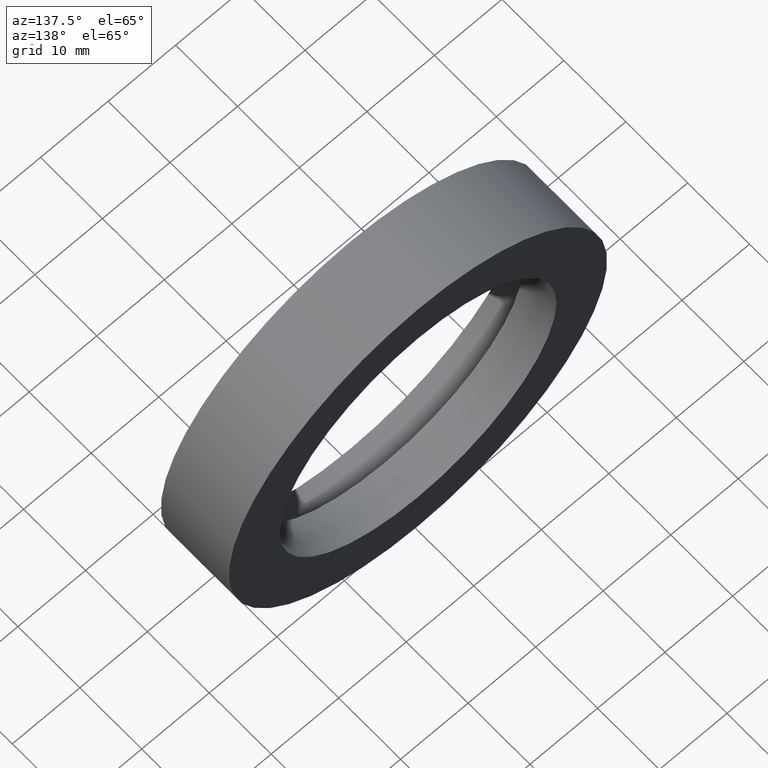
[diagram: clean part render]
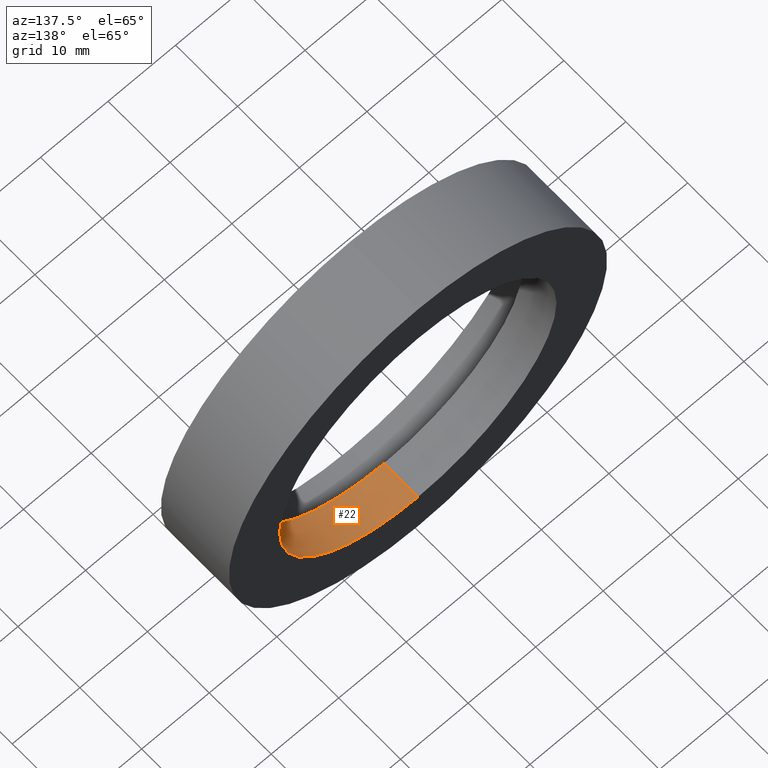
[diagram: same view with one face highlighted and labeled with its STEP entity id]
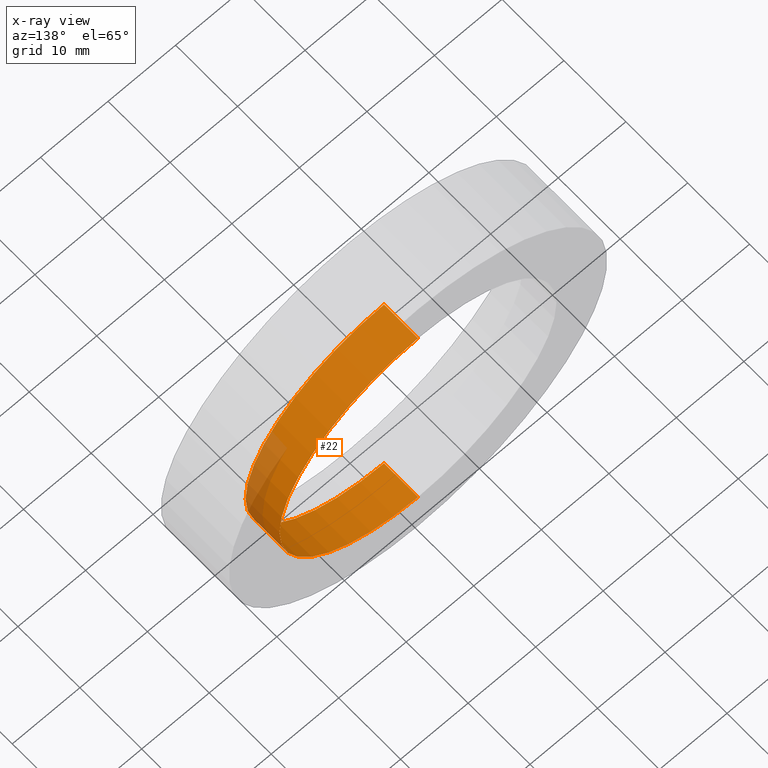
[diagram: x-ray of the same camera — body ghosted, the highlighted face saturated]
A machine part, auxiliary view. The second image highlights one B-rep face of the part: STEP entity #22.
The next image is the same camera in x-ray: the body ghosted, the highlighted face saturated — about 10% of this face is hidden behind the body in this view.
In plain terms, the highlighted cylindrical surface (partial cylindrical patch) has radius 20.5 mm, axis along (-0, 1, -0).
Its self-contained STEP definition (entity closure, byte-faithful):
#16 = ORIENTED_EDGE ( 'NONE', *, *, #142, .T. ) ;
#21 = AXIS2_PLACEMENT_3D ( 'NONE', #384, #192, #412 ) ;
#22 = ADVANCED_FACE ( 'NONE', ( #322 ), #282, .F. ) ;
#82 = VECTOR ( 'NONE', #273, 1000.000000000000000 ) ;
#83 = VERTEX_POINT ( 'NONE', #196 ) ;
#88 = LINE ( 'NONE', #355, #356 ) ;
#90 = EDGE_CURVE ( 'NONE', #344, #217, #88, .T. ) ;
#109 = CARTESIAN_POINT ( 'NONE',  ( 2.510525938252074900E-015, 60.02082041425541100, -20.50000000000000700 ) ) ;
#114 = DIRECTION ( 'NONE',  ( -0.0000000000000000000, 1.000000000000000000, -0.0000000000000000000 ) ) ;
#116 = DIRECTION ( 'NONE',  ( -0.0000000000000000000, 1.000000000000000000, -0.0000000000000000000 ) ) ;
#136 = LINE ( 'NONE', #109, #82 ) ;
#142 = EDGE_CURVE ( 'NONE', #217, #83, #366, .T. ) ;
#146 = EDGE_CURVE ( 'NONE', #344, #220, #197, .T. ) ;
#182 = ORIENTED_EDGE ( 'NONE', *, *, #90, .T. ) ;
#192 = DIRECTION ( 'NONE',  ( -0.0000000000000000000, 1.000000000000000000, -0.0000000000000000000 ) ) ;
#193 = ORIENTED_EDGE ( 'NONE', *, *, #323, .F. ) ;
#196 = CARTESIAN_POINT ( 'NONE',  ( 2.510525938252074900E-015, 10.99999999999999600, -20.50000000000000700 ) ) ;
#197 = CIRCLE ( 'NONE', #21, 20.50000000000000700 ) ;
#198 = EDGE_LOOP ( 'NONE', ( #193, #361, #182, #16 ) ) ;
#202 = DIRECTION ( 'NONE',  ( 0.0000000000000000000, 0.0000000000000000000, 1.000000000000000000 ) ) ;
#213 = CARTESIAN_POINT ( 'NONE',  ( 0.0000000000000000000, 5.499999999999998200, 20.50000000000000700 ) ) ;
#217 = VERTEX_POINT ( 'NONE', #349 ) ;
#220 = VERTEX_POINT ( 'NONE', #350 ) ;
#273 = DIRECTION ( 'NONE',  ( -0.0000000000000000000, 1.000000000000000000, -0.0000000000000000000 ) ) ;
#282 = CYLINDRICAL_SURFACE ( 'NONE', #389, 20.50000000000000700 ) ;
#296 = CARTESIAN_POINT ( 'NONE',  ( 0.0000000000000000000, 60.02082041425541100, 0.0000000000000000000 ) ) ;
#320 = CARTESIAN_POINT ( 'NONE',  ( 0.0000000000000000000, 10.99999999999999600, 0.0000000000000000000 ) ) ;
#322 = FACE_OUTER_BOUND ( 'NONE', #198, .T. ) ;
#323 = EDGE_CURVE ( 'NONE', #220, #83, #136, .T. ) ;
#344 = VERTEX_POINT ( 'NONE', #213 ) ;
#349 = CARTESIAN_POINT ( 'NONE',  ( 0.0000000000000000000, 10.99999999999999600, 20.50000000000000700 ) ) ;
#350 = CARTESIAN_POINT ( 'NONE',  ( 2.510525938252074900E-015, 5.499999999999998200, -20.50000000000000700 ) ) ;
#353 = DIRECTION ( 'NONE',  ( 0.0000000000000000000, 0.0000000000000000000, 1.000000000000000000 ) ) ;
#355 = CARTESIAN_POINT ( 'NONE',  ( 0.0000000000000000000, 60.02082041425541100, 20.50000000000000700 ) ) ;
#356 = VECTOR ( 'NONE', #116, 1000.000000000000000 ) ;
#359 = DIRECTION ( 'NONE',  ( -0.0000000000000000000, 1.000000000000000000, -0.0000000000000000000 ) ) ;
#361 = ORIENTED_EDGE ( 'NONE', *, *, #146, .F. ) ;
#366 = CIRCLE ( 'NONE', #370, 20.50000000000000700 ) ;
#370 = AXIS2_PLACEMENT_3D ( 'NONE', #320, #114, #353 ) ;
#384 = CARTESIAN_POINT ( 'NONE',  ( 0.0000000000000000000, 5.499999999999998200, 0.0000000000000000000 ) ) ;
#389 = AXIS2_PLACEMENT_3D ( 'NONE', #296, #359, #202 ) ;
#412 = DIRECTION ( 'NONE',  ( 0.0000000000000000000, 0.0000000000000000000, 1.000000000000000000 ) ) ;